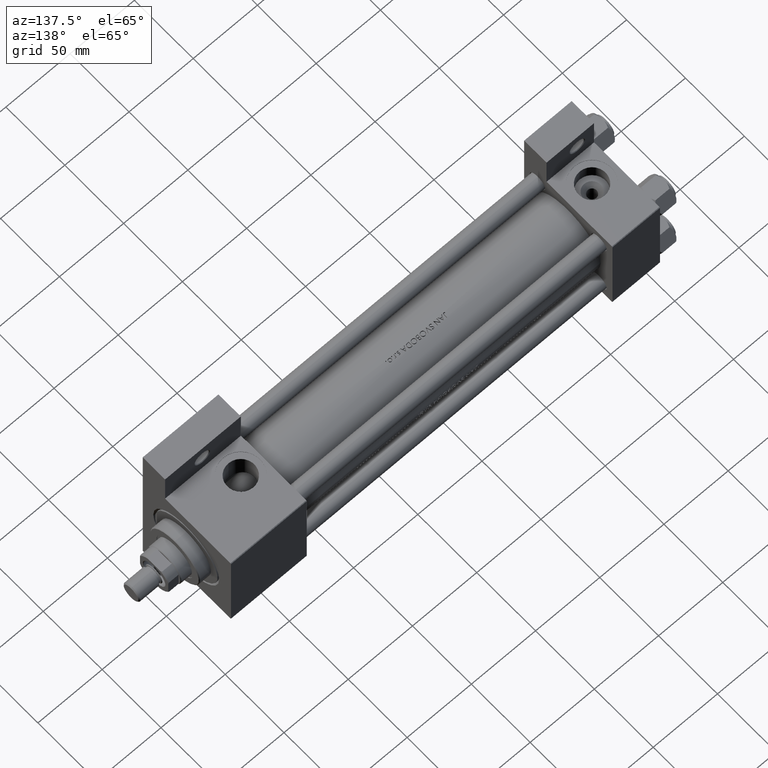
[diagram: clean part render]
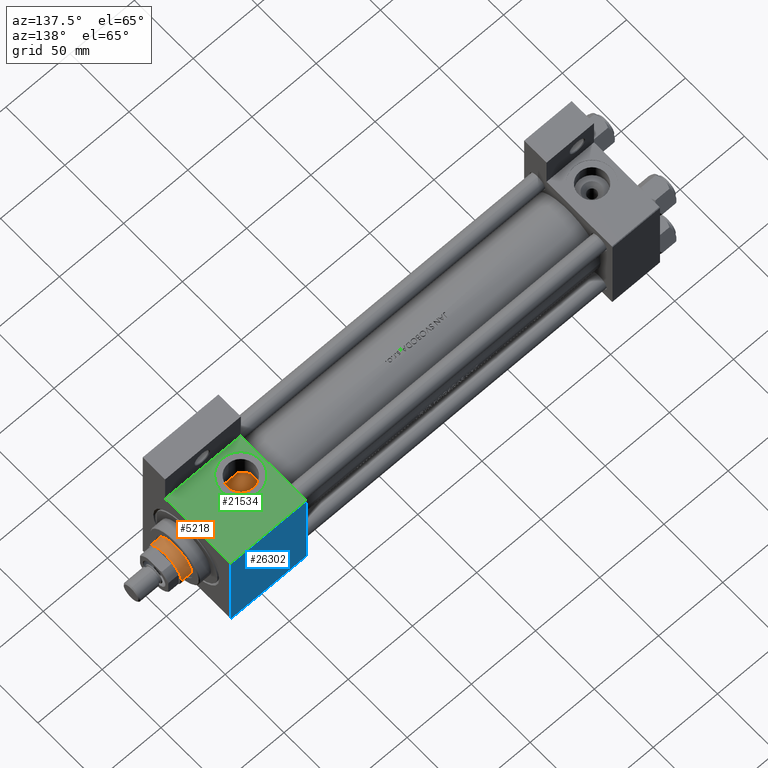
[diagram: same view with three faces highlighted in distinct colors, each labeled with its STEP entity id]
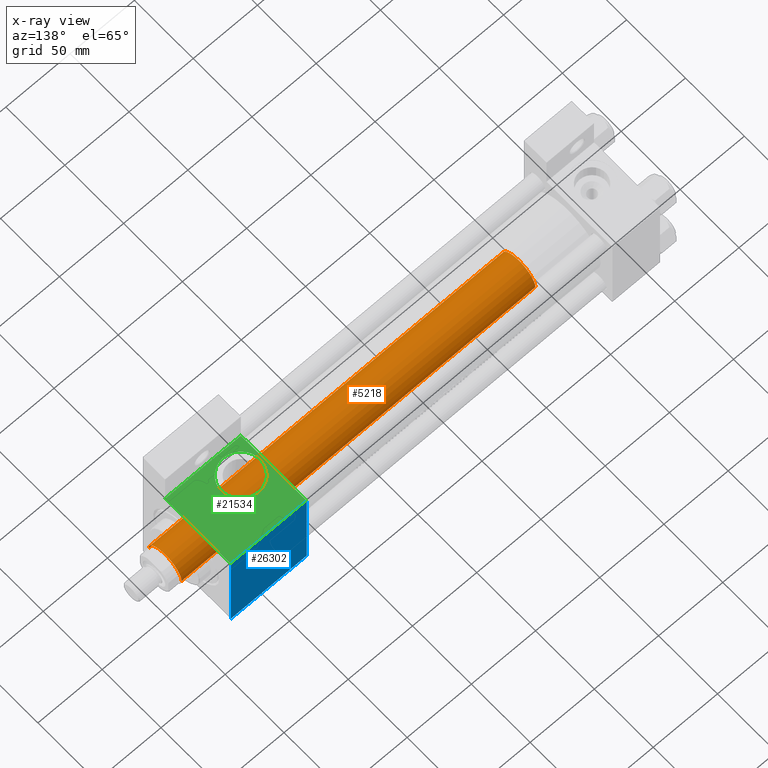
[diagram: x-ray of the same camera — body ghosted, the three highlighted faces saturated]
A machine part, auxiliary view with three faces highlighted in distinct colors.
The next image is the same camera in x-ray (body ghosted, the three faces saturated) — at least one of them is partly hidden behind the body in this view.
Their STEP definitions:

[orange] entity #5218 — the highlighted cylindrical surface (edge-blend (fillet) strip) has radius 14 mm, axis along (-1, 0, 0).
#114 = EDGE_LOOP ( 'NONE', ( #10266, #44299, #6657, #46619 ) ) ;
#604 = DIRECTION ( 'NONE',  ( 0.000000000000000000, 0.000000000000000000, 1.000000000000000000 ) ) ;
#1107 = EDGE_CURVE ( 'NONE', #40657, #11490, #33925, .T. ) ;
#2430 = LINE ( 'NONE', #34038, #10808 ) ;
#3564 = DIRECTION ( 'NONE',  ( -0.000000000000000000, -0.000000000000000000, -1.000000000000000000 ) ) ;
#3566 = VERTEX_POINT ( 'NONE', #43293 ) ;
#4569 = CARTESIAN_POINT ( 'NONE',  ( 14.00000000000000178, 1.714505518806294835E-15, 38.00000000000000000 ) ) ;
#5218 = ADVANCED_FACE ( 'NONE', ( #40136 ), #29002, .T. ) ;
#6657 = ORIENTED_EDGE ( 'NONE', *, *, #1107, .T. ) ;
#7212 = CARTESIAN_POINT ( 'NONE',  ( -14.00000000000000178, 0.000000000000000000, 38.00000000000000000 ) ) ;
#7347 = AXIS2_PLACEMENT_3D ( 'NONE', #48003, #25212, #13323 ) ;
#8894 = VERTEX_POINT ( 'NONE', #4569 ) ;
#10266 = ORIENTED_EDGE ( 'NONE', *, *, #27535, .F. ) ;
#10808 = VECTOR ( 'NONE', #17844, 1000.000000000000000 ) ;
#11449 = CARTESIAN_POINT ( 'NONE',  ( 0.000000000000000000, 0.000000000000000000, 313.5000000000000000 ) ) ;
#11490 = VERTEX_POINT ( 'NONE', #7212 ) ;
#12724 = DIRECTION ( 'NONE',  ( 1.000000000000000000, 0.000000000000000000, 0.000000000000000000 ) ) ;
#13323 = DIRECTION ( 'NONE',  ( -1.000000000000000000, 0.000000000000000000, 0.000000000000000000 ) ) ;
#14279 = CIRCLE ( 'NONE', #40922, 14.00000000000000178 ) ;
#14763 = DIRECTION ( 'NONE',  ( 0.000000000000000000, 0.000000000000000000, -1.000000000000000000 ) ) ;
#16657 = AXIS2_PLACEMENT_3D ( 'NONE', #11449, #14763, #34738 ) ;
#17844 = DIRECTION ( 'NONE',  ( -0.000000000000000000, -0.000000000000000000, -1.000000000000000000 ) ) ;
#22782 = CARTESIAN_POINT ( 'NONE',  ( -14.00000000000000178, 0.000000000000000000, 314.0000000000000000 ) ) ;
#23301 = VECTOR ( 'NONE', #3564, 1000.000000000000000 ) ;
#25212 = DIRECTION ( 'NONE',  ( -0.000000000000000000, -0.000000000000000000, -1.000000000000000000 ) ) ;
#27046 = CARTESIAN_POINT ( 'NONE',  ( -14.00000000000000178, 0.000000000000000000, 313.5000000000000000 ) ) ;
#27535 = EDGE_CURVE ( 'NONE', #3566, #8894, #2430, .T. ) ;
#29002 = CYLINDRICAL_SURFACE ( 'NONE', #7347, 14.00000000000000178 ) ;
#32255 = EDGE_CURVE ( 'NONE', #3566, #40657, #44151, .T. ) ;
#33925 = LINE ( 'NONE', #22782, #23301 ) ;
#34038 = CARTESIAN_POINT ( 'NONE',  ( 14.00000000000000178, 1.714505518806294835E-15, 314.0000000000000000 ) ) ;
#34738 = DIRECTION ( 'NONE',  ( 1.000000000000000000, 0.000000000000000000, 0.000000000000000000 ) ) ;
#36287 = EDGE_CURVE ( 'NONE', #11490, #8894, #14279, .T. ) ;
#40136 = FACE_OUTER_BOUND ( 'NONE', #114, .T. ) ;
#40657 = VERTEX_POINT ( 'NONE', #27046 ) ;
#40922 = AXIS2_PLACEMENT_3D ( 'NONE', #43349, #604, #12724 ) ;
#43293 = CARTESIAN_POINT ( 'NONE',  ( 14.00000000000000178, 1.714505518806294835E-15, 313.5000000000000000 ) ) ;
#43349 = CARTESIAN_POINT ( 'NONE',  ( 0.000000000000000000, 0.000000000000000000, 38.00000000000000000 ) ) ;
#44151 = CIRCLE ( 'NONE', #16657, 14.00000000000000178 ) ;
#44299 = ORIENTED_EDGE ( 'NONE', *, *, #32255, .T. ) ;
#46619 = ORIENTED_EDGE ( 'NONE', *, *, #36287, .T. ) ;
#48003 = CARTESIAN_POINT ( 'NONE',  ( 0.000000000000000000, 0.000000000000000000, 314.0000000000000000 ) ) ;

[blue] entity #26302 — the highlighted planar face has unit normal (0, -1, -0).
#58 = CARTESIAN_POINT ( 'NONE',  ( 274.9999999999999432, 36.99999999999994316, 37.49999999999999289 ) ) ;
#2731 = AXIS2_PLACEMENT_3D ( 'NONE', #18328, #45166, #45668 ) ;
#6065 = DIRECTION ( 'NONE',  ( 0.000000000000000000, -1.000000000000000000, -1.850371707708594316E-16 ) ) ;
#6672 = DIRECTION ( 'NONE',  ( 0.000000000000000000, -1.000000000000000000, -1.850371707708594316E-16 ) ) ;
#8930 = CARTESIAN_POINT ( 'NONE',  ( 333.9999999999999432, -36.99999999999994316, 37.49999999999997868 ) ) ;
#9745 = VERTEX_POINT ( 'NONE', #20756 ) ;
#10430 = EDGE_CURVE ( 'NONE', #29937, #34923, #13549, .T. ) ;
#10940 = ORIENTED_EDGE ( 'NONE', *, *, #32156, .T. ) ;
#13513 = LINE ( 'NONE', #25650, #27187 ) ;
#13549 = LINE ( 'NONE', #14299, #26051 ) ;
#14299 = CARTESIAN_POINT ( 'NONE',  ( 333.9999999999999432, -36.99999999999994316, 37.49999999999997868 ) ) ;
#14486 = VERTEX_POINT ( 'NONE', #20781 ) ;
#14550 = PLANE ( 'NONE',  #2731 ) ;
#16407 = VECTOR ( 'NONE', #26877, 1000.000000000000000 ) ;
#17754 = ORIENTED_EDGE ( 'NONE', *, *, #10430, .T. ) ;
#18328 = CARTESIAN_POINT ( 'NONE',  ( 333.9999999999999432, 37.50000000000000000, 37.49999999999999289 ) ) ;
#19080 = FACE_OUTER_BOUND ( 'NONE', #24238, .T. ) ;
#20756 = CARTESIAN_POINT ( 'NONE',  ( 333.9999999999999432, 36.99999999999994316, 37.49999999999999289 ) ) ;
#20781 = CARTESIAN_POINT ( 'NONE',  ( 274.9999999999999432, 36.99999999999994316, 37.49999999999999289 ) ) ;
#21727 = EDGE_CURVE ( 'NONE', #9745, #14486, #42791, .T. ) ;
#22410 = ORIENTED_EDGE ( 'NONE', *, *, #45415, .F. ) ;
#24238 = EDGE_LOOP ( 'NONE', ( #22410, #26112, #10940, #17754 ) ) ;
#25650 = CARTESIAN_POINT ( 'NONE',  ( 274.9999999999999432, 37.50000000000000000, 37.49999999999999289 ) ) ;
#26051 = VECTOR ( 'NONE', #28985, 1000.000000000000000 ) ;
#26112 = ORIENTED_EDGE ( 'NONE', *, *, #21727, .T. ) ;
#26302 = ADVANCED_FACE ( 'NONE', ( #19080 ), #14550, .F. ) ;
#26877 = DIRECTION ( 'NONE',  ( -1.000000000000000000, 0.000000000000000000, 0.000000000000000000 ) ) ;
#27187 = VECTOR ( 'NONE', #6672, 1000.000000000000000 ) ;
#28985 = DIRECTION ( 'NONE',  ( 1.000000000000000000, 0.000000000000000000, 0.000000000000000000 ) ) ;
#29937 = VERTEX_POINT ( 'NONE', #31764 ) ;
#31764 = CARTESIAN_POINT ( 'NONE',  ( 274.9999999999999432, -36.99999999999994316, 37.49999999999997868 ) ) ;
#32156 = EDGE_CURVE ( 'NONE', #14486, #29937, #13513, .T. ) ;
#34923 = VERTEX_POINT ( 'NONE', #8930 ) ;
#38801 = VECTOR ( 'NONE', #6065, 1000.000000000000000 ) ;
#40210 = LINE ( 'NONE', #44260, #38801 ) ;
#42791 = LINE ( 'NONE', #58, #16407 ) ;
#44260 = CARTESIAN_POINT ( 'NONE',  ( 333.9999999999999432, 37.50000000000000000, 37.49999999999999289 ) ) ;
#45166 = DIRECTION ( 'NONE',  ( 0.000000000000000000, 1.850371707708594316E-16, -1.000000000000000000 ) ) ;
#45415 = EDGE_CURVE ( 'NONE', #9745, #34923, #40210, .T. ) ;
#45668 = DIRECTION ( 'NONE',  ( 0.000000000000000000, 1.000000000000000000, 1.850371707708594316E-16 ) ) ;

[green] entity #21534 — the highlighted planar face has unit normal (0, -0, -1).
#508 = EDGE_CURVE ( 'NONE', #37763, #17847, #26710, .T. ) ;
#602 = VERTEX_POINT ( 'NONE', #32861 ) ;
#1386 = LINE ( 'NONE', #20600, #30215 ) ;
#1866 = DIRECTION ( 'NONE',  ( 0.000000000000000000, 1.000000000000000000, -9.251858538542972814E-17 ) ) ;
#2428 = VERTEX_POINT ( 'NONE', #30816 ) ;
#4596 = AXIS2_PLACEMENT_3D ( 'NONE', #24634, #1866, #32455 ) ;
#5657 = FACE_BOUND ( 'NONE', #27576, .T. ) ;
#6164 = CIRCLE ( 'NONE', #24764, 15.00000000000002487 ) ;
#7821 = VECTOR ( 'NONE', #9609, 1000.000000000000000 ) ;
#9609 = DIRECTION ( 'NONE',  ( 0.000000000000000000, -9.251858538542972814E-17, -1.000000000000000000 ) ) ;
#12003 = DIRECTION ( 'NONE',  ( 0.000000000000000000, 0.000000000000000000, -1.000000000000000000 ) ) ;
#12866 = LINE ( 'NONE', #47047, #17223 ) ;
#12890 = ORIENTED_EDGE ( 'NONE', *, *, #15283, .T. ) ;
#13535 = ORIENTED_EDGE ( 'NONE', *, *, #33586, .F. ) ;
#14282 = CIRCLE ( 'NONE', #42555, 15.00000000000002487 ) ;
#15283 = EDGE_CURVE ( 'NONE', #17847, #602, #12866, .T. ) ;
#16313 = VERTEX_POINT ( 'NONE', #36350 ) ;
#17195 = CARTESIAN_POINT ( 'NONE',  ( 292.0000000000000000, -37.50000000000000000, 3.469446951953615767E-15 ) ) ;
#17223 = VECTOR ( 'NONE', #24016, 1000.000000000000000 ) ;
#17786 = EDGE_CURVE ( 'NONE', #602, #22418, #1386, .T. ) ;
#17847 = VERTEX_POINT ( 'NONE', #33490 ) ;
#18546 = ORIENTED_EDGE ( 'NONE', *, *, #33558, .F. ) ;
#20537 = ORIENTED_EDGE ( 'NONE', *, *, #508, .T. ) ;
#20600 = CARTESIAN_POINT ( 'NONE',  ( 274.9999999999999432, -37.50000000000000000, -18.50000000000000000 ) ) ;
#21534 = ADVANCED_FACE ( 'NONE', ( #5657, #24884 ), #47161, .F. ) ;
#22418 = VERTEX_POINT ( 'NONE', #42355 ) ;
#23649 = CARTESIAN_POINT ( 'NONE',  ( 333.9999999999999432, -37.50000000000000000, 36.99999999999992184 ) ) ;
#24016 = DIRECTION ( 'NONE',  ( 0.000000000000000000, -9.251858538542972814E-17, -1.000000000000000000 ) ) ;
#24634 = CARTESIAN_POINT ( 'NONE',  ( 333.9999999999999432, -37.50000000000000000, 37.49999999999997868 ) ) ;
#24764 = AXIS2_PLACEMENT_3D ( 'NONE', #42125, #26712, #12003 ) ;
#24884 = FACE_OUTER_BOUND ( 'NONE', #42120, .T. ) ;
#25541 = CARTESIAN_POINT ( 'NONE',  ( 333.9999999999999432, -37.50000000000000000, 37.49999999999997868 ) ) ;
#26710 = LINE ( 'NONE', #23649, #36221 ) ;
#26712 = DIRECTION ( 'NONE',  ( 0.000000000000000000, -1.000000000000000000, -8.673617379884036705E-17 ) ) ;
#27576 = EDGE_LOOP ( 'NONE', ( #13535, #35740 ) ) ;
#29329 = DIRECTION ( 'NONE',  ( 0.000000000000000000, 0.000000000000000000, -1.000000000000000000 ) ) ;
#29573 = DIRECTION ( 'NONE',  ( 0.000000000000000000, -1.000000000000000000, -8.673617379884036705E-17 ) ) ;
#30215 = VECTOR ( 'NONE', #36285, 1000.000000000000000 ) ;
#30816 = CARTESIAN_POINT ( 'NONE',  ( 292.0000000000000000, -37.50000000000000000, -15.00000000000002132 ) ) ;
#32043 = EDGE_CURVE ( 'NONE', #16313, #2428, #6164, .T. ) ;
#32455 = DIRECTION ( 'NONE',  ( 0.000000000000000000, 9.251858538542972814E-17, 1.000000000000000000 ) ) ;
#32861 = CARTESIAN_POINT ( 'NONE',  ( 274.9999999999999432, -37.50000000000000000, -18.50000000000000000 ) ) ;
#33490 = CARTESIAN_POINT ( 'NONE',  ( 274.9999999999999432, -37.50000000000000000, 36.99999999999992184 ) ) ;
#33558 = EDGE_CURVE ( 'NONE', #37763, #22418, #37424, .T. ) ;
#33586 = EDGE_CURVE ( 'NONE', #2428, #16313, #14282, .T. ) ;
#34300 = DIRECTION ( 'NONE',  ( -1.000000000000000000, 0.000000000000000000, 0.000000000000000000 ) ) ;
#35740 = ORIENTED_EDGE ( 'NONE', *, *, #32043, .F. ) ;
#36221 = VECTOR ( 'NONE', #34300, 1000.000000000000000 ) ;
#36285 = DIRECTION ( 'NONE',  ( 1.000000000000000000, -1.176083712526648949E-16, 0.000000000000000000 ) ) ;
#36350 = CARTESIAN_POINT ( 'NONE',  ( 292.0000000000000000, -37.50000000000000000, 15.00000000000002842 ) ) ;
#37424 = LINE ( 'NONE', #25541, #7821 ) ;
#37763 = VERTEX_POINT ( 'NONE', #43843 ) ;
#42120 = EDGE_LOOP ( 'NONE', ( #18546, #20537, #12890, #42493 ) ) ;
#42125 = CARTESIAN_POINT ( 'NONE',  ( 292.0000000000000000, -37.50000000000000000, 3.469446951953615767E-15 ) ) ;
#42355 = CARTESIAN_POINT ( 'NONE',  ( 333.9999999999999432, -37.50000000000000711, -18.50000000000000355 ) ) ;
#42493 = ORIENTED_EDGE ( 'NONE', *, *, #17786, .T. ) ;
#42555 = AXIS2_PLACEMENT_3D ( 'NONE', #17195, #29573, #29329 ) ;
#43843 = CARTESIAN_POINT ( 'NONE',  ( 333.9999999999999432, -37.50000000000000000, 36.99999999999992184 ) ) ;
#47047 = CARTESIAN_POINT ( 'NONE',  ( 274.9999999999999432, -37.50000000000000000, 37.49999999999997868 ) ) ;
#47161 = PLANE ( 'NONE',  #4596 ) ;